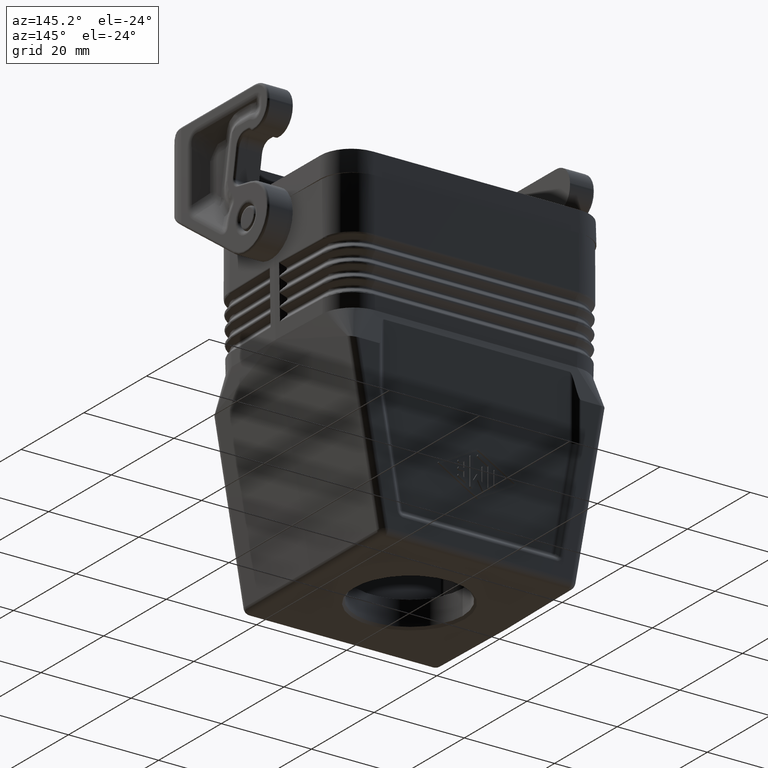
[diagram: clean part render]
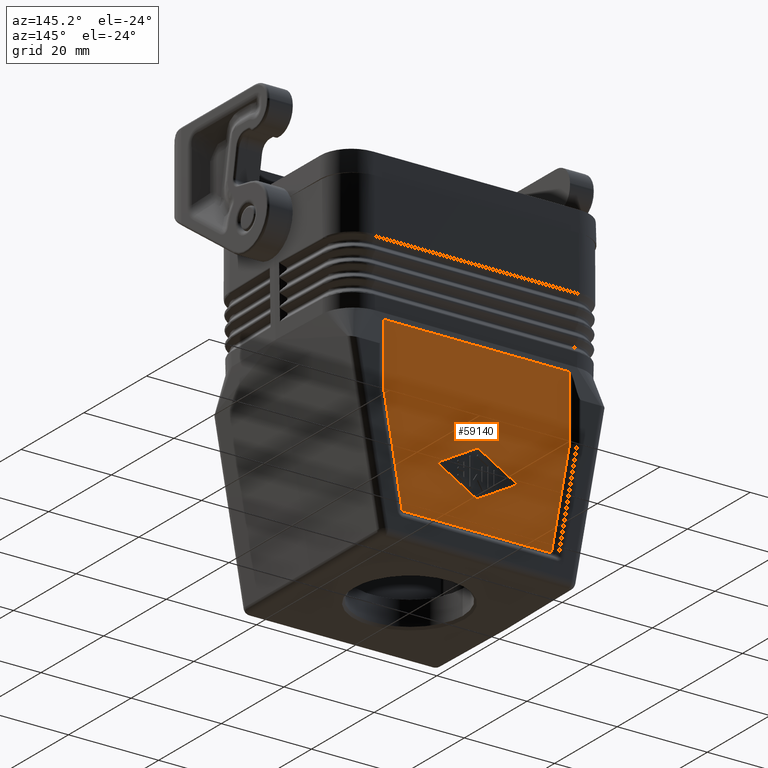
[diagram: same view with one face highlighted and labeled with its STEP entity id]
A machine part, auxiliary view. The second image highlights one B-rep face of the part: STEP entity #59140.
In plain terms, the highlighted planar face has unit normal (-0, -1, -0).
Its self-contained STEP definition (entity closure, byte-faithful):
#100=CARTESIAN_POINT('',(27.8740779768177,41.7281492392887,
53.8553182572757));
#110=VERTEX_POINT('',#100);
#290=CARTESIAN_POINT('',(27.8740779768177,41.7281492392887,
54.1446817427244));
#300=VERTEX_POINT('',#290);
#330=CARTESIAN_POINT('',(27.8740779768177,41.81085,54.));
#340=DIRECTION('',(-1.,0.,0.));
#350=DIRECTION('',(0.,-1.,0.));
#360=AXIS2_PLACEMENT_3D('',#330,#340,#350);
#370=CIRCLE('',#360,0.166649999999925);
#380=EDGE_CURVE('',#110,#300,#370,.T.);
#17940=CARTESIAN_POINT('',(27.8740779768177,50.1445984785772,
49.0444365145513));
#17950=VERTEX_POINT('',#17940);
#18070=CARTESIAN_POINT('',(27.8740779768177,0.,77.7073234943372));
#18080=DIRECTION('',(0.,0.868177274073496,-0.496254189687417));
#18090=VECTOR('',#18080,1.);
#18100=LINE('',#18070,#18090);
#18110=EDGE_CURVE('',#110,#17950,#18100,.T.);
#19680=CARTESIAN_POINT('',(27.8740779768177,58.8917561163981,
53.8551567480192));
#19690=VERTEX_POINT('',#19680);
#19860=CARTESIAN_POINT('',(27.8740779768177,50.4753987379612,
49.0444349235293));
#19870=VERTEX_POINT('',#19860);
#19900=CARTESIAN_POINT('',(27.8740779768177,0.,20.1931051391427));
#19910=DIRECTION('',(0.,0.868182047616831,0.496245838467031));
#19920=VECTOR('',#19910,1.);
#19930=LINE('',#19900,#19920);
#19940=EDGE_CURVE('',#19870,#19690,#19930,.T.);
#20690=CARTESIAN_POINT('',(27.8740779768177,50.31,49.3338));
#20700=DIRECTION('',(-1.,0.,0.));
#20710=DIRECTION('',(0.,-1.,0.));
#20720=AXIS2_PLACEMENT_3D('',#20690,#20700,#20710);
#20730=CIRCLE('',#20720,0.333300000000038);
#20740=EDGE_CURVE('',#19870,#17950,#20730,.T.);
#21830=CARTESIAN_POINT('',(27.8740779768177,50.4753987379613,
58.9555650764707));
#21840=VERTEX_POINT('',#21830);
#22010=CARTESIAN_POINT('',(27.8740779768177,58.891756116398,
54.1448432519809));
#22020=VERTEX_POINT('',#22010);
#22050=CARTESIAN_POINT('',(27.8740779768177,0.,87.8068948608573));
#22060=DIRECTION('',(0.,-0.868182047616831,0.496245838467031));
#22070=VECTOR('',#22060,1.);
#22080=LINE('',#22050,#22070);
#22090=EDGE_CURVE('',#22020,#21840,#22080,.T.);
#24010=CARTESIAN_POINT('',(27.8740779768177,50.1445984785773,
58.9555634854487));
#24020=VERTEX_POINT('',#24010);
#24150=CARTESIAN_POINT('',(27.8740779768177,50.31,58.6662));
#24160=DIRECTION('',(-1.,0.,0.));
#24170=DIRECTION('',(0.,-1.,0.));
#24180=AXIS2_PLACEMENT_3D('',#24150,#24160,#24170);
#24190=CIRCLE('',#24180,0.333299999999976);
#24200=EDGE_CURVE('',#24020,#21840,#24190,.T.);
#38470=CARTESIAN_POINT('',(27.8740779768177,58.8089648847399,54.));
#38480=DIRECTION('',(-1.,0.,0.));
#38490=DIRECTION('',(0.,-1.,0.));
#38500=AXIS2_PLACEMENT_3D('',#38470,#38480,#38490);
#38510=CIRCLE('',#38500,0.166835115260118);
#38520=EDGE_CURVE('',#22020,#19690,#38510,.T.);
#39200=CARTESIAN_POINT('',(27.8740779768177,33.7594616325326,
65.5857864376269));
#39210=VERTEX_POINT('',#39200);
#52770=CARTESIAN_POINT('',(27.8740779768177,0.,30.292676505663));
#52780=DIRECTION('',(0.,-0.868177274073497,-0.496254189687414));
#52790=VECTOR('',#52780,1.);
#52800=LINE('',#52770,#52790);
#52810=EDGE_CURVE('',#24020,#300,#52800,.T.);
#58510=CARTESIAN_POINT('',(27.8740779768177,64.3605312101869,
44.5789487470731));
#58520=DIRECTION('',(1.,0.,0.));
#58530=DIRECTION('',(0.,1.,0.));
#58540=AXIS2_PLACEMENT_3D('',#58510,#58520,#58530);
#58550=PLANE('',#58540);
#58560=ORIENTED_EDGE('',*,*,#19940,.T.);
#58570=ORIENTED_EDGE('',*,*,#20740,.F.);
#58580=ORIENTED_EDGE('',*,*,#18110,.T.);
#58590=ORIENTED_EDGE('',*,*,#380,.F.);
#58600=ORIENTED_EDGE('',*,*,#52810,.T.);
#58610=ORIENTED_EDGE('',*,*,#24200,.F.);
#58620=ORIENTED_EDGE('',*,*,#22090,.T.);
#58630=ORIENTED_EDGE('',*,*,#38520,.F.);
#58640=EDGE_LOOP('',(#58630,#58620,#58610,#58600,#58590,#58580,#58570,
#58560));
#58650=FACE_BOUND('',#58640,.T.);
#58660=CARTESIAN_POINT('',(27.8740779768177,0.,28.4524838252967));
#58670=DIRECTION('',(0.,1.,0.));
#58680=VECTOR('',#58670,1.);
#58690=LINE('',#58660,#58680);
#58700=CARTESIAN_POINT('',(27.8740779768177,29.7242135623731,
28.4524838252966));
#58710=VERTEX_POINT('',#58700);
#58720=CARTESIAN_POINT('',(27.8740779768177,70.8957864376269,
28.4524838252967));
#58730=VERTEX_POINT('',#58720);
#58740=EDGE_CURVE('',#58710,#58730,#58690,.T.);
#58750=ORIENTED_EDGE('',*,*,#58740,.F.);
#58760=CARTESIAN_POINT('',(27.8740779768177,70.8957864376269,12.));
#58770=DIRECTION('',(0.,0.,1.));
#58780=VECTOR('',#58770,1.);
#58790=LINE('',#58760,#58780);
#58800=CARTESIAN_POINT('',(27.8740779768177,70.8957864376269,
42.7007574196836));
#58810=VERTEX_POINT('',#58800);
#58820=EDGE_CURVE('',#58730,#58810,#58790,.T.);
#58830=ORIENTED_EDGE('',*,*,#58820,.F.);
#58840=CARTESIAN_POINT('',(27.8740779768177,76.3091582989027,12.));
#58850=DIRECTION('',(0.,-0.17364817766693,0.984807753012208));
#58860=VECTOR('',#58850,1.);
#58870=LINE('',#58840,#58860);
#58880=CARTESIAN_POINT('',(27.8740779768177,66.8605383674673,
65.585786437627));
#58890=VERTEX_POINT('',#58880);
#58900=EDGE_CURVE('',#58810,#58890,#58870,.T.);
#58910=ORIENTED_EDGE('',*,*,#58900,.F.);
#58920=CARTESIAN_POINT('',(27.8740779768177,0.,65.5857864376269));
#58930=DIRECTION('',(0.,-1.,0.));
#58940=VECTOR('',#58930,1.);
#58950=LINE('',#58920,#58940);
#58960=EDGE_CURVE('',#58890,#39210,#58950,.T.);
#58970=ORIENTED_EDGE('',*,*,#58960,.F.);
#58980=CARTESIAN_POINT('',(27.8740779768177,24.3108417010973,12.));
#58990=DIRECTION('',(0.,0.173648177666931,0.984807753012208));
#59000=VECTOR('',#58990,1.);
#59010=LINE('',#58980,#59000);
#59020=CARTESIAN_POINT('',(27.8740779768177,29.7242135623731,
42.7007574196836));
#59030=VERTEX_POINT('',#59020);
#59040=EDGE_CURVE('',#59030,#39210,#59010,.T.);
#59050=ORIENTED_EDGE('',*,*,#59040,.T.);
#59060=CARTESIAN_POINT('',(27.8740779768177,29.7242135623731,12.));
#59070=DIRECTION('',(0.,3.46944695195361E-16,1.));
#59080=VECTOR('',#59070,1.);
#59090=LINE('',#59060,#59080);
#59100=EDGE_CURVE('',#58710,#59030,#59090,.T.);
#59110=ORIENTED_EDGE('',*,*,#59100,.T.);
#59120=EDGE_LOOP('',(#59110,#59050,#58970,#58910,#58830,#58750));
#59130=FACE_OUTER_BOUND('',#59120,.T.);
#59140=ADVANCED_FACE('',(#58650,#59130),#58550,.F.);